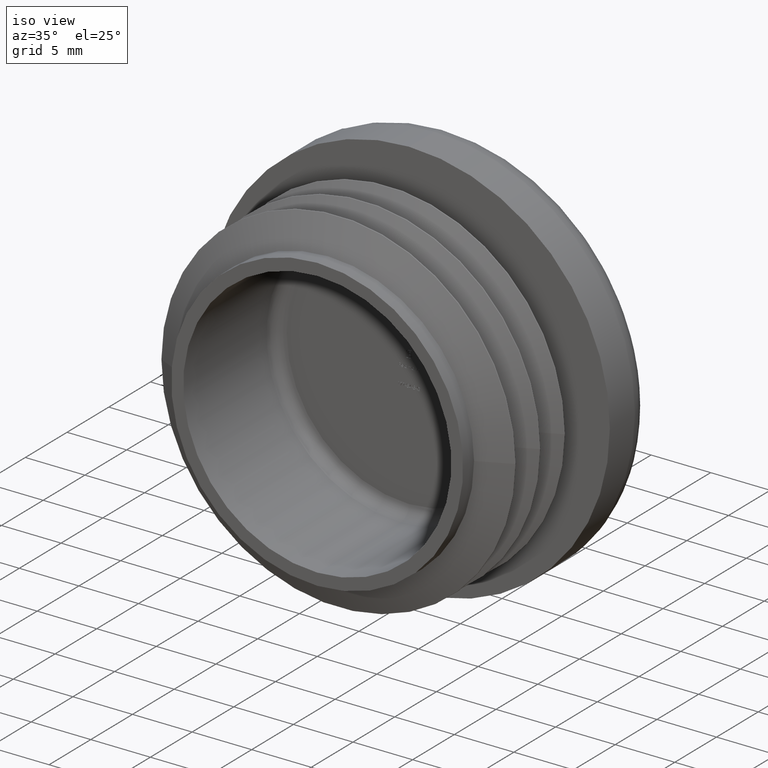
[diagram: clean part render]
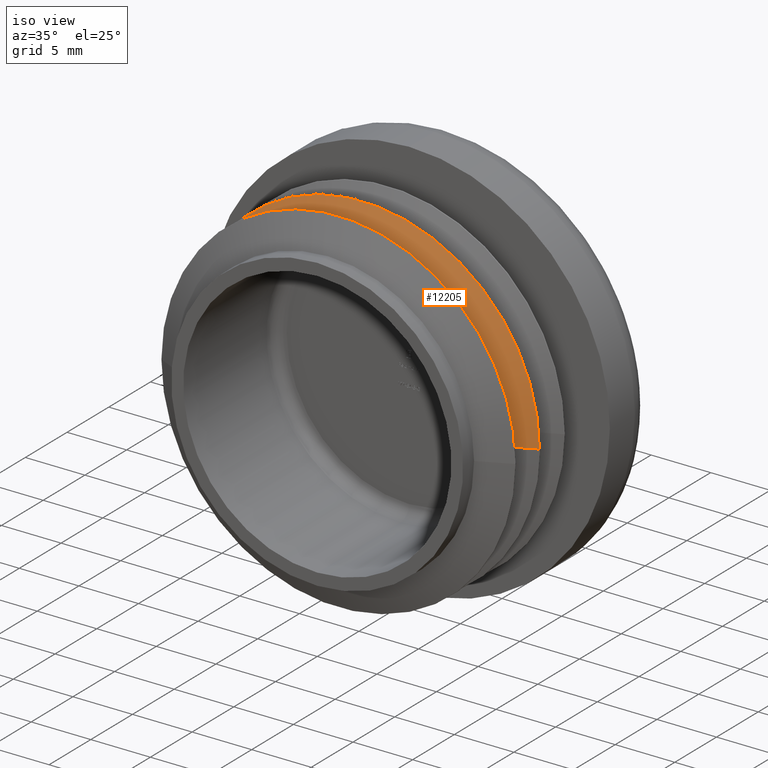
[diagram: same view with one face highlighted and labeled with its STEP entity id]
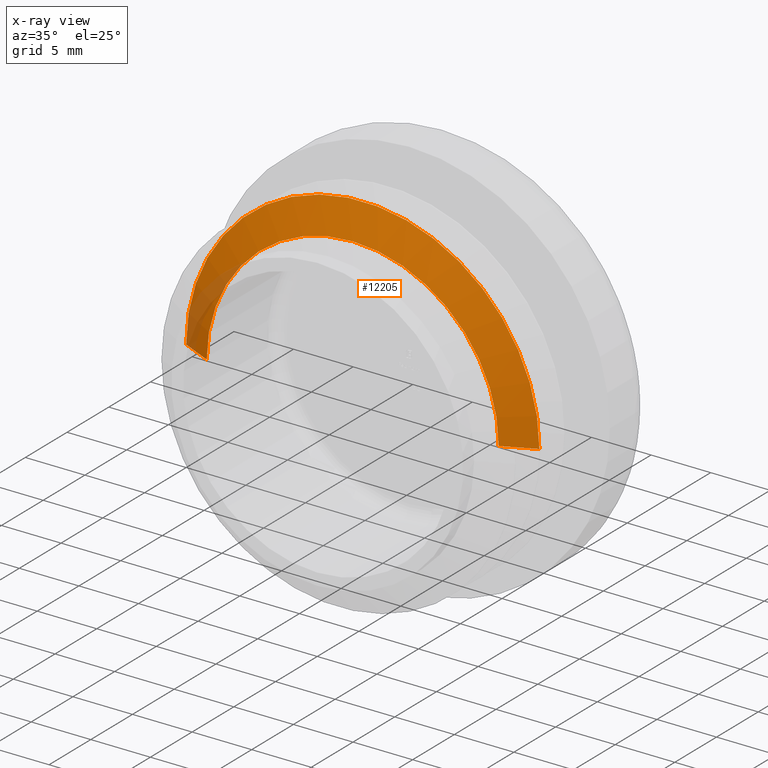
[diagram: x-ray of the same camera — body ghosted, the highlighted face saturated]
A machine part, iso view. The second image highlights one B-rep face of the part: STEP entity #12205.
The next image is the same camera in x-ray: the body ghosted, the highlighted face saturated — about 6% of this face is hidden behind the body in this view.
In plain terms, the highlighted conical surface has half-angle 64.895 deg.
Its self-contained STEP definition (entity closure, byte-faithful):
#11 = CARTESIAN_POINT ( 'NONE',  ( -12.25000000000004619, 4.249999999999860556, 0.000000000000000000 ) ) ;
#38 = CARTESIAN_POINT ( 'NONE',  ( -4.451638707024983984E-14, 4.249999999999989342, 0.000000000000000000 ) ) ;
#577 = LINE ( 'NONE', #7510, #732 ) ;
#732 = VECTOR ( 'NONE', #4391, 1000.000000000000000 ) ;
#1046 = AXIS2_PLACEMENT_3D ( 'NONE', #8308, #4069, #11572 ) ;
#1081 = VERTEX_POINT ( 'NONE', #11 ) ;
#1203 = ORIENTED_EDGE ( 'NONE', *, *, #10250, .F. ) ;
#1548 = CARTESIAN_POINT ( 'NONE',  ( -4.451638707024983984E-14, 4.249999999999989342, 0.000000000000000000 ) ) ;
#2584 = VERTEX_POINT ( 'NONE', #9989 ) ;
#3037 = CARTESIAN_POINT ( 'NONE',  ( 12.24999999999995559, 4.250000000000117240, 1.657633778522968580E-15 ) ) ;
#3212 = CIRCLE ( 'NONE', #3554, 12.25000000000000000 ) ;
#3258 = EDGE_LOOP ( 'NONE', ( #5995, #7673, #11169, #1203, #13102 ) ) ;
#3554 = AXIS2_PLACEMENT_3D ( 'NONE', #38, #13725, #9506 ) ;
#4069 = DIRECTION ( 'NONE',  ( 1.047444401652940164E-14, -1.000000000000000000, -0.000000000000000000 ) ) ;
#4391 = DIRECTION ( 'NONE',  ( 0.9055310776063628664, 0.4242799400031296853, 1.108955735719091243E-16 ) ) ;
#5599 = AXIS2_PLACEMENT_3D ( 'NONE', #6262, #13689, #6305 ) ;
#5636 = EDGE_CURVE ( 'NONE', #12946, #2584, #8845, .T. ) ;
#5995 = ORIENTED_EDGE ( 'NONE', *, *, #8086, .T. ) ;
#6117 = VECTOR ( 'NONE', #8139, 1000.000000000000000 ) ;
#6262 = CARTESIAN_POINT ( 'NONE',  ( -4.451638707025021218E-14, 4.250000000000024869, 0.000000000000000000 ) ) ;
#6305 = DIRECTION ( 'NONE',  ( -1.000000000000000000, -1.047914589569656560E-14, 0.000000000000000000 ) ) ;
#6405 = AXIS2_PLACEMENT_3D ( 'NONE', #1548, #7043, #8287 ) ;
#7043 = DIRECTION ( 'NONE',  ( -1.047444401652940164E-14, 1.000000000000000000, 0.000000000000000000 ) ) ;
#7510 = CARTESIAN_POINT ( 'NONE',  ( 12.25000000000003197, 4.250000000000152767, 1.500192328955517003E-15 ) ) ;
#7673 = ORIENTED_EDGE ( 'NONE', *, *, #13570, .T. ) ;
#7677 = CIRCLE ( 'NONE', #6405, 12.25000000000000000 ) ;
#8086 = EDGE_CURVE ( 'NONE', #13644, #10377, #7677, .T. ) ;
#8139 = DIRECTION ( 'NONE',  ( -0.9055310776063717482, 0.4242799400031107004, 0.000000000000000000 ) ) ;
#8287 = DIRECTION ( 'NONE',  ( -1.000000000000000000, -1.047914589569663029E-14, 0.000000000000000000 ) ) ;
#8308 = CARTESIAN_POINT ( 'NONE',  ( -5.713519536203120052E-14, 5.454723446119706942, 0.000000000000000000 ) ) ;
#8845 = CIRCLE ( 'NONE', #1046, 14.82121399700024078 ) ;
#9407 = CONICAL_SURFACE ( 'NONE', #5599, 12.25000000000007638, 1.132629769229690941 ) ;
#9506 = DIRECTION ( 'NONE',  ( -1.000000000000000000, -1.047914589569663029E-14, 0.000000000000000000 ) ) ;
#9761 = LINE ( 'NONE', #10419, #6117 ) ;
#9871 = CARTESIAN_POINT ( 'NONE',  ( 1.500192328954163910E-15, 4.249999999999989342, 12.25000000000000000 ) ) ;
#9943 = CARTESIAN_POINT ( 'NONE',  ( 14.82121399700018394, 5.454723446119862373, 1.815075228090429229E-15 ) ) ;
#9989 = CARTESIAN_POINT ( 'NONE',  ( -14.82121399700029762, 5.454723446119551511, 0.000000000000000000 ) ) ;
#10250 = EDGE_CURVE ( 'NONE', #1081, #2584, #9761, .T. ) ;
#10377 = VERTEX_POINT ( 'NONE', #3037 ) ;
#10419 = CARTESIAN_POINT ( 'NONE',  ( -12.25000000000012257, 4.249999999999896083, 0.000000000000000000 ) ) ;
#11169 = ORIENTED_EDGE ( 'NONE', *, *, #5636, .T. ) ;
#11572 = DIRECTION ( 'NONE',  ( 1.000000000000000000, 1.047537341619571970E-14, 0.000000000000000000 ) ) ;
#12205 = ADVANCED_FACE ( 'NONE', ( #13397 ), #9407, .T. ) ;
#12946 = VERTEX_POINT ( 'NONE', #9943 ) ;
#13102 = ORIENTED_EDGE ( 'NONE', *, *, #13360, .T. ) ;
#13360 = EDGE_CURVE ( 'NONE', #1081, #13644, #3212, .T. ) ;
#13397 = FACE_OUTER_BOUND ( 'NONE', #3258, .T. ) ;
#13570 = EDGE_CURVE ( 'NONE', #10377, #12946, #577, .T. ) ;
#13644 = VERTEX_POINT ( 'NONE', #9871 ) ;
#13689 = DIRECTION ( 'NONE',  ( -1.047444401652940164E-14, 1.000000000000000000, 0.000000000000000000 ) ) ;
#13725 = DIRECTION ( 'NONE',  ( -1.047444401652940164E-14, 1.000000000000000000, 0.000000000000000000 ) ) ;